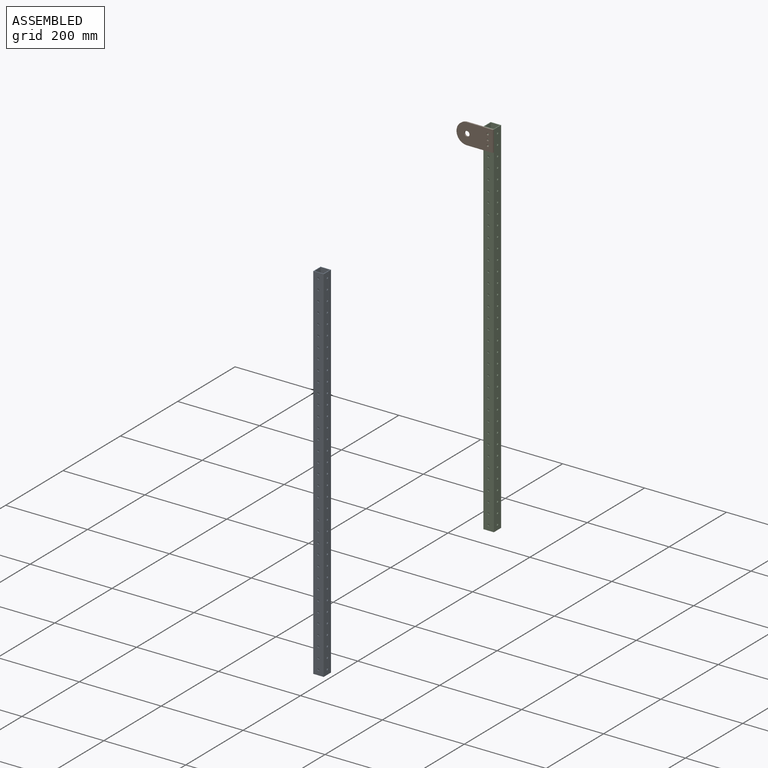
[diagram: assembled view]
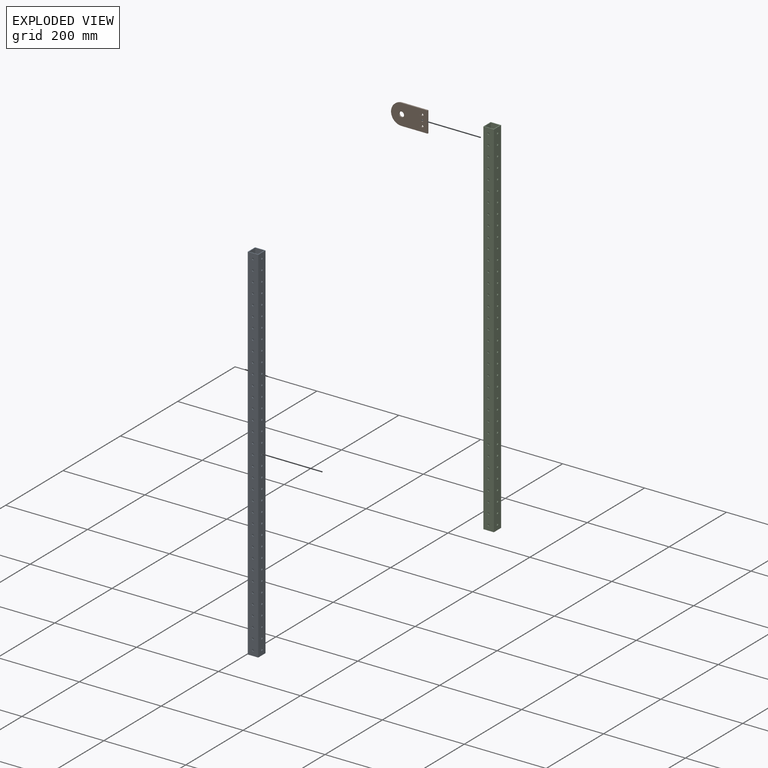
[diagram: exploded view]
GUIDED TOUR — MATED ASSEMBLY (Onshape document ac5246587169fc90806b41d7, AutoMate assembly ac5246587169fc90806b41d7_b72da44484d10dc54b9407ca_9897477dd4e05959f77915a9_default)

This assembly has 3 components, labeled P0..P2 below (a component is one placed occurrence of a part; the same part can appear more than once), held together by 3 mates. A mate is a constraint between two components; its type names the relative motion it leaves free:
  CYLINDRICAL — leaves both rotation about and translation along the listed axis free,
  PLANAR — leaves sliding in the plane through the listed point (normal = the listed direction) and rotation about that normal free.
Axis/direction vectors are unit vectors and 'through' points are millimeter coordinates, both in the assembly's world frame.

MATES
  1. PLANAR "Planar 1": P2 <-> P1, direction (0.000, -1.000, 0.000) through (-244.31, 148.28, 1399.09) mm
  2. CYLINDRICAL "Cylindrical 2": P1 <-> P2, axis (0.000, -1.000, 0.000) through (-244.31, 145.11, 1424.49) mm
  3. CYLINDRICAL "Cylindrical 1": P1 <-> P2, axis (0.000, -1.000, 0.000) through (-244.31, 145.11, 1449.89) mm

ASSEMBLY ORDER
  1. P2 — the base component [order verified]
  2. P1 [order verified]
  3. P0 [order verified]
Order-tag legend:
  [order verified] — this step's position reverses a verified removal order: the component was checked to insert without passing through the ones already placed.

Of the 3 components, 3 carry the full construction recipe — the FeatureScript program that regenerates the part's solid from scratch; the rest are supplied as boundary geometry only.
Each toured component is shown spotlighted twice — in the assembled view, then in the exploded view, where a leader line traces a displaced component back to its assembled socket (saturated green if recipe-attached, orange if geometry-only; every other component desaturated gray) — followed by its recipe or geometry summary and the mates that hold it.
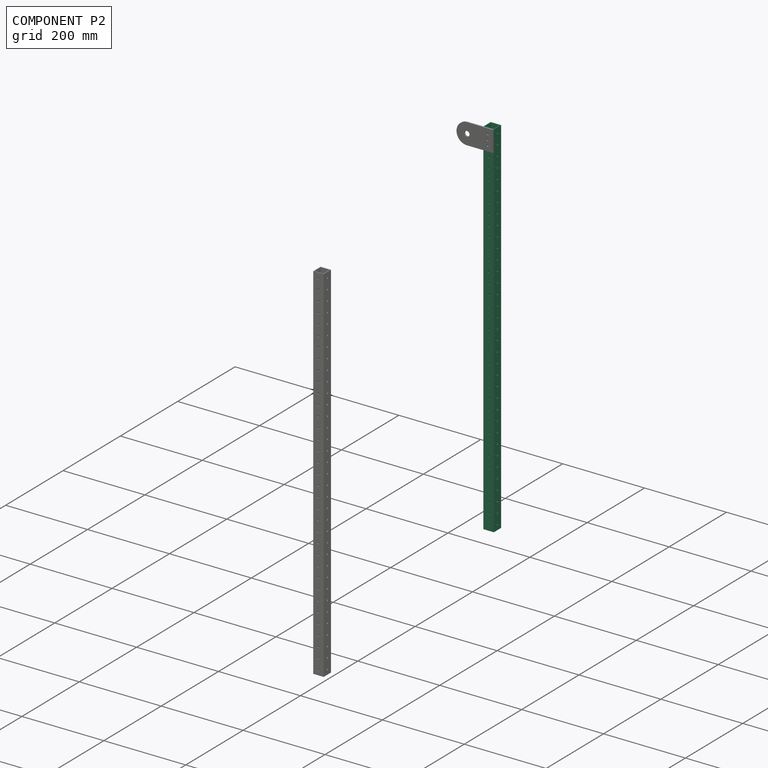
[diagram: component P2 — assembled]
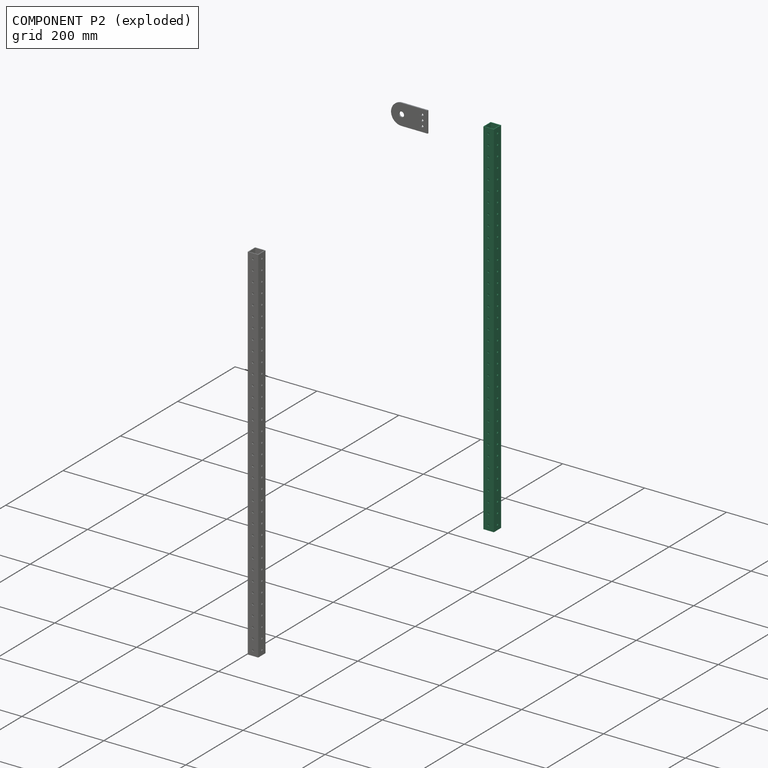
[diagram: component P2 — exploded]
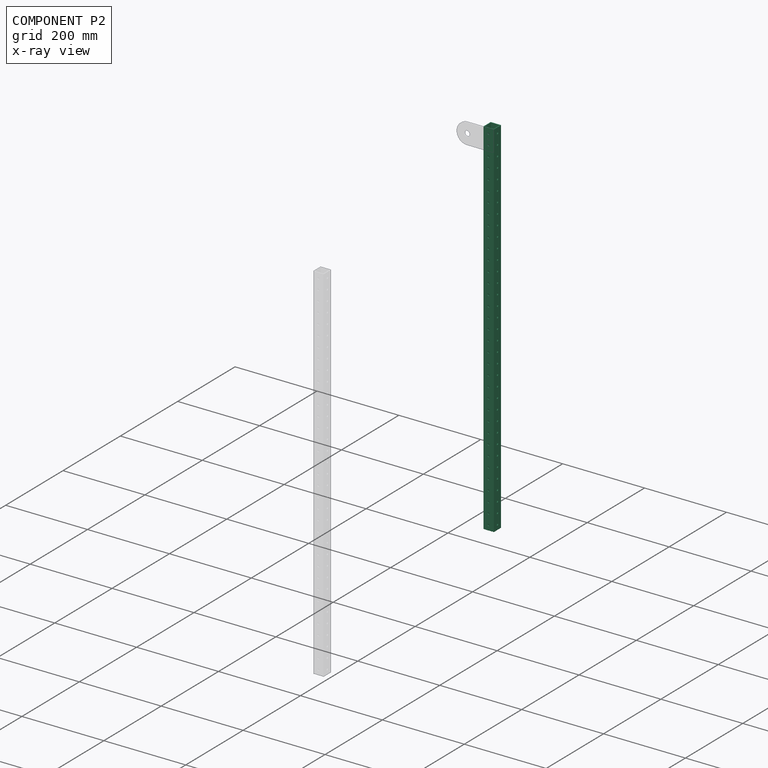
[diagram: component P2 — x-ray view]
COMPONENT P2 — same part as P0 (CADFS 00293491); its construction recipe is shown at P0.
Held by: PLANAR mate "Planar 1" to P1; CYLINDRICAL mate "Cylindrical 2" to P1; CYLINDRICAL mate "Cylindrical 1" to P1.
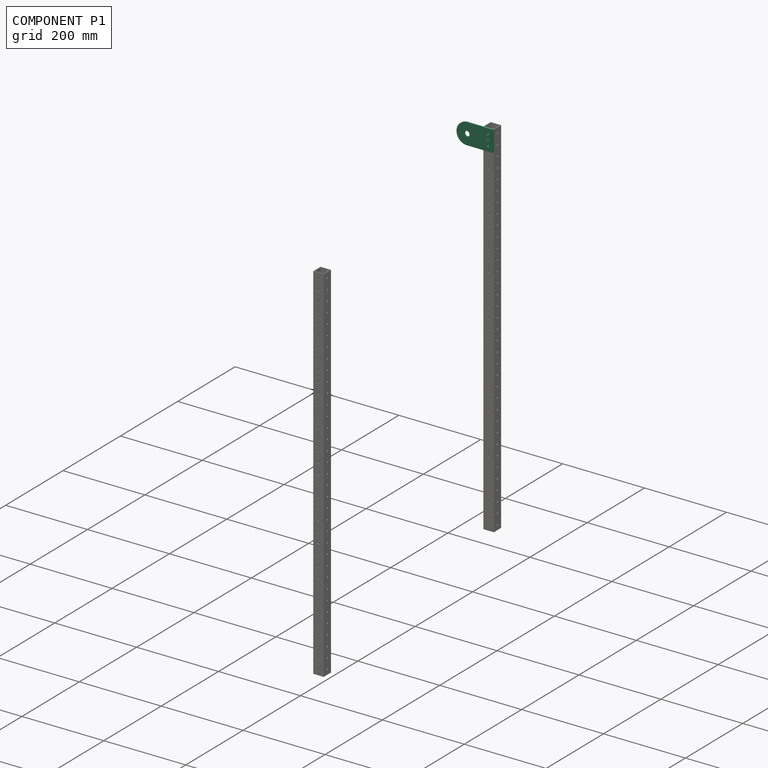
[diagram: component P1 — assembled]
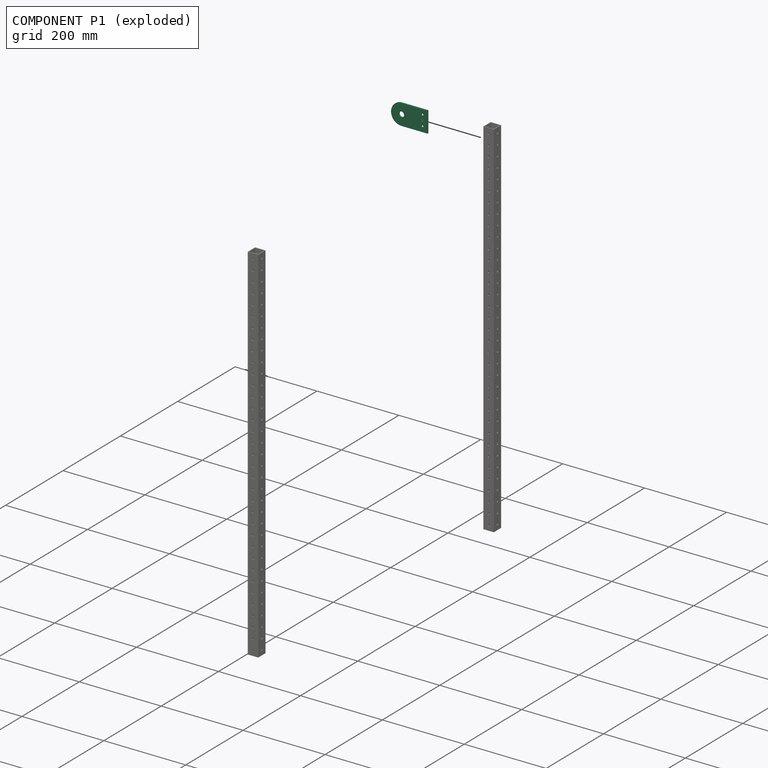
[diagram: component P1 — exploded]
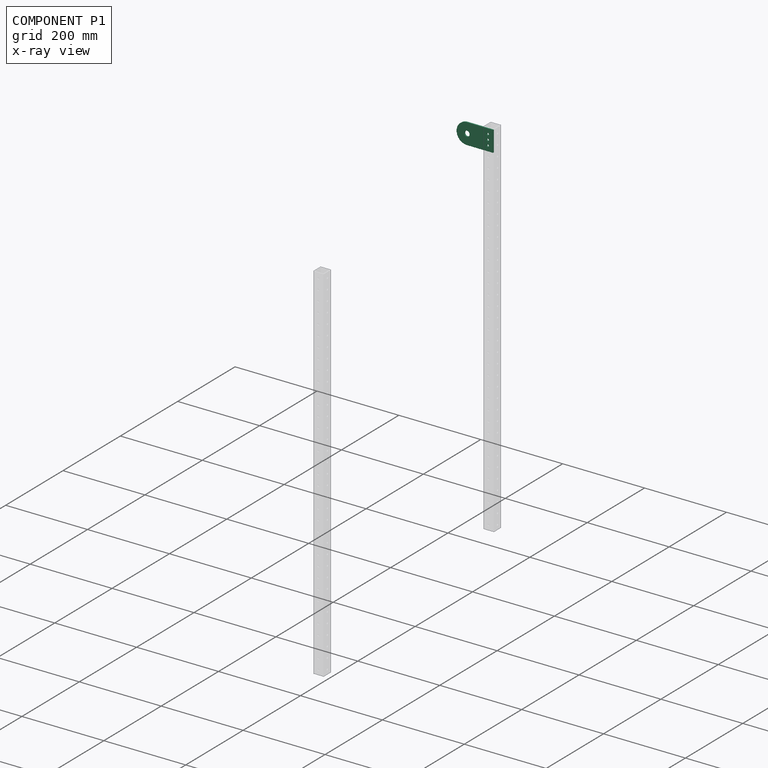
[diagram: component P1 — x-ray view]
COMPONENT P1 — recipe-attached (CADFS 00293493, mesh-verified: the recipe's output STEP matches this component's geometry to below the mesh-comparison resolution (tessellation chordal tolerance ~0.154 mm)).
Held by: PLANAR mate "Planar 1" to P2; CYLINDRICAL mate "Cylindrical 2" to P2; CYLINDRICAL mate "Cylindrical 1" to P2.
Construction recipe (FeatureScript — the CAD program that rebuilds this solid; sketch coordinates are in the units given by the * unit suffixes, e.g. mm):

FeatureScript 1511;
import(path : "onshape/std/geometry.fs", version : "1511.0");
import(path : "onshape/std/common.fs", version : "1511.0");
const mm = millimeter;
const VERTEX = EntityType.VERTEX;
const EDGE = EntityType.EDGE;
const FACE = EntityType.FACE;
const BODY = EntityType.BODY;
function v(x, y){return vector(x, y);}
function OD(order){return orderDisambiguation(order);}
function OSD(set){return originalSetDisambiguation(set);}
function TD(topology){return topologyDisambiguation(topology);}
function TDD(query){return trueDependencyDisambiguation(query);}
function sQuery(a, b, c) {return sketchEntityQuery(a, b, c);}

annotation { "Feature Type Name" : "Feature", "Feature Type Description" : "" }
export const myFeature = defineFeature(function(context is Context, id is Id, definition is map)
    precondition{}
    {
        {
            var Q0;
            Q0=qCreatedBy(makeId("Front.planeOp"),FACE);
            var sketch = newSketch(context, id + "F0", { "sketchPlane" : qUnion([Q0])});
            skCircle(sketch, "E0", {"center": v(0, 0) * mm, "radius": 6.35 * mm});
            skArc(sketch, "E1", {"start": v(25.4, 0) * mm, "mid": v(0, 25.4) * mm, "end": v(-25.4, 0) * mm});
            skLineSegment(sketch, "E2", {"start": v(-25.4, 0) * mm, "end": v(-25.4, -63.5) * mm});
            skLineSegment(sketch, "E3", {"start": v(-25.4, -63.5) * mm, "end": v(25.4, -63.5) * mm});
            skLineSegment(sketch, "E4", {"start": v(25.4, -63.5) * mm, "end": v(25.4, 0) * mm});
            skCircle(sketch, "E5", {"center": v(-12.7, -50.8) * mm, "radius": 2.55 * mm});
            skCircle(sketch, "E6.1.0.0", {"center": v(0, -50.8) * mm, "radius": 2.55 * mm});
            skCircle(sketch, "E6.2.0.0", {"center": v(12.7, -50.8) * mm, "radius": 2.55 * mm});
            skLineSegment(sketch, "E6.direction1", {"start": v(-12.7, -50.8) * mm, "end": v(0, -50.8) * mm, "construction": true});
            skSolve(sketch);
        }
        {
            var Q0;
            Q0=makeQuery(id+"F0.imprint","IMPRINT",FACE,{"disambiguationData":[TD([[makeQuery(id+"F0.imprint","IMPRINT",EDGE,{"derivedFrom":sQuery(id+"F0.wireOp",EDGE,"E0")}),-1.0]])]});
            extrude(context, id + "F1", {"entities" : qUnion([Q0]), "depth" : 3.17 * mm});
        }
    });
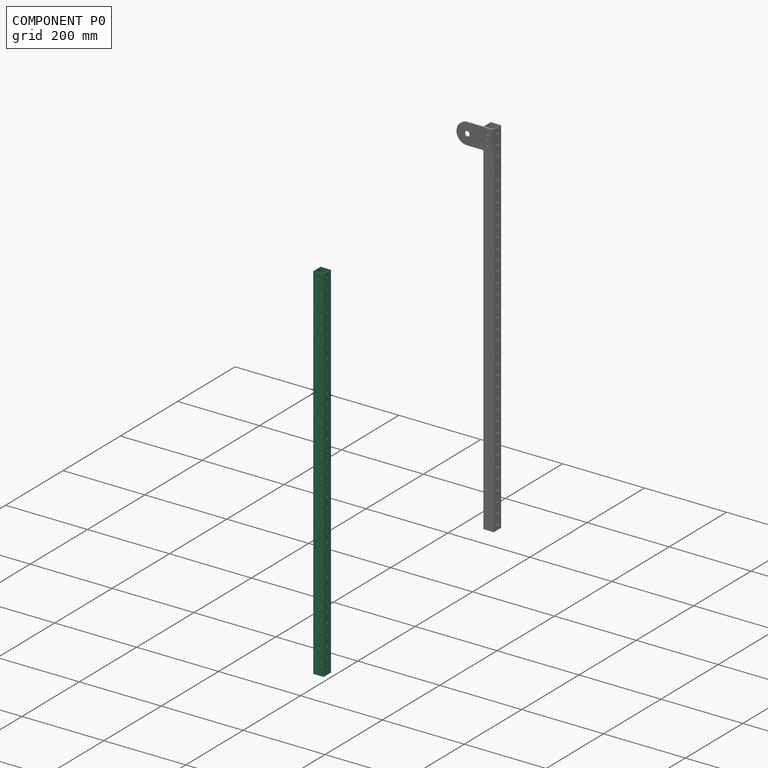
[diagram: component P0 — assembled]
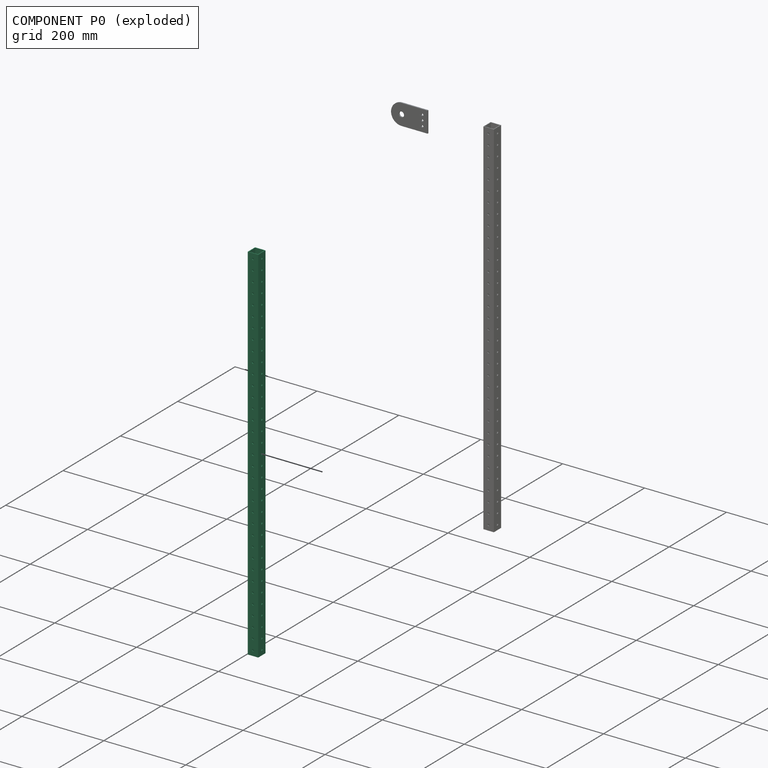
[diagram: component P0 — exploded]
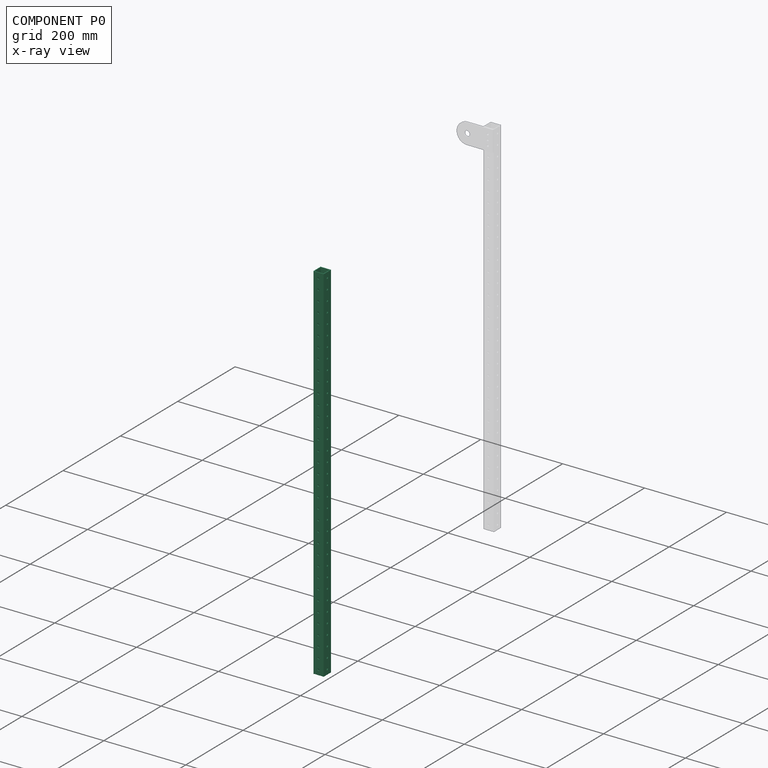
[diagram: component P0 — x-ray view]
COMPONENT P0 — recipe-attached (CADFS 00293491, mesh-verified: the recipe's output STEP matches this component's geometry to below the mesh-comparison resolution (tessellation chordal tolerance ~1.33 mm)).
Held by: no mates (free).
Construction recipe (FeatureScript — the CAD program that rebuilds this solid; sketch coordinates are in the units given by the * unit suffixes, e.g. mm):

FeatureScript 1511;
import(path : "onshape/std/geometry.fs", version : "1511.0");
import(path : "onshape/std/common.fs", version : "1511.0");
const mm = millimeter;
const VERTEX = EntityType.VERTEX;
const EDGE = EntityType.EDGE;
const FACE = EntityType.FACE;
const BODY = EntityType.BODY;
function v(x, y){return vector(x, y);}
function OD(order){return orderDisambiguation(order);}
function OSD(set){return originalSetDisambiguation(set);}
function TD(topology){return topologyDisambiguation(topology);}
function TDD(query){return trueDependencyDisambiguation(query);}
function sQuery(a, b, c) {return sketchEntityQuery(a, b, c);}

annotation { "Feature Type Name" : "Feature", "Feature Type Description" : "" }
export const myFeature = defineFeature(function(context is Context, id is Id, definition is map)
    precondition{}
    {
        {
            var Q0;
            Q0=qCreatedBy(makeId("Top.planeOp"),FACE);
            var sketch = newSketch(context, id + "F0", { "sketchPlane" : qUnion([Q0])});
            skLineSegment(sketch, "E0.bottom", {"start": v(12.7, -12.7) * mm, "end": v(-12.7, -12.7) * mm});
            skLineSegment(sketch, "E0.top", {"start": v(12.7, 12.7) * mm, "end": v(-12.7, 12.7) * mm});
            skLineSegment(sketch, "E0.left", {"start": v(12.7, -12.7) * mm, "end": v(12.7, 12.7) * mm});
            skLineSegment(sketch, "E0.right", {"start": v(-12.7, -12.7) * mm, "end": v(-12.7, 12.7) * mm});
            skPoint(sketch, "E0.middle", {"position": v(0, 0) * mm});
            skSolve(sketch);
        }
        {
            var Q0;
            Q0=makeQuery(id+"F0.imprint","IMPRINT",FACE,{"disambiguationData":[TD([[makeQuery(id+"F0.imprint","IMPRINT",EDGE,{"derivedFrom":sQuery(id+"F0.wireOp",EDGE,"E0.bottom")}),-1.0]])]});
            extrude(context, id + "F1", {"entities" : qUnion([Q0]), "depth" : 889 * mm});
        }
        {
            var Q0;
            Q0=makeQuery(id+"F1.opExtrude","CAP_FACE",FACE,{"disambiguationData":[OSD([sQuery(id+"F0.wireOp",EDGE,"E0.bottom"),sQuery(id+"F0.wireOp",EDGE,"E0.top"),sQuery(id+"F0.wireOp",EDGE,"E0.left"),sQuery(id+"F0.wireOp",EDGE,"E0.right")])],"isStart":false});
            var sketch = newSketch(context, id + "F2", { "sketchPlane" : qUnion([Q0])});
            skLineSegment(sketch, "E1.bottom", {"start": v(11.11, -11.11) * mm, "end": v(-11.11, -11.11) * mm});
            skLineSegment(sketch, "E1.top", {"start": v(11.11, 11.11) * mm, "end": v(-11.11, 11.11) * mm});
            skLineSegment(sketch, "E1.left", {"start": v(11.11, -11.11) * mm, "end": v(11.11, 11.11) * mm});
            skLineSegment(sketch, "E1.right", {"start": v(-11.11, -11.11) * mm, "end": v(-11.11, 11.11) * mm});
            skPoint(sketch, "E1.middle", {"position": v(0, 0) * mm});
            skSolve(sketch);
        }
        {
            var Q0;
            Q0=makeQuery(id+"F2.imprint","IMPRINT",FACE,{"disambiguationData":[TD([[makeQuery(id+"F2.imprint","IMPRINT",EDGE,{"derivedFrom":sQuery(id+"F2.wireOp",EDGE,"E1.bottom")}),-1.0]])]});
            extrude(context, id + "F3", {"entities" : qUnion([Q0]), "operationType" : NewBodyOperationType.REMOVE, "oppositeDirection" : true, "depth" : 889 * mm});
        }
        {
            var Q0;
            Q0=makeQuery(id+"F1.opExtrude","SWEPT_FACE",FACE,{"disambiguationData":[OSD([sQuery(id+"F0.wireOp",EDGE,"E0.top")])]});
            var sketch = newSketch(context, id + "F4", { "sketchPlane" : qUnion([Q0])});
            skCircle(sketch, "E2", {"center": v(0, 876.3) * mm, "radius": 2.55 * mm});
            skCircle(sketch, "E3.1.0.0", {"center": v(0, 850.9) * mm, "radius": 2.55 * mm});
            skCircle(sketch, "E3.2.0.0", {"center": v(0, 825.5) * mm, "radius": 2.55 * mm});
            skCircle(sketch, "E3.3.0.0", {"center": v(0, 800.1) * mm, "radius": 2.55 * mm});
            skCircle(sketch, "E3.4.0.0", {"center": v(0, 774.7) * mm, "radius": 2.55 * mm});
            skCircle(sketch, "E3.5.0.0", {"center": v(0, 749.3) * mm, "radius": 2.55 * mm});
            skCircle(sketch, "E3.6.0.0", {"center": v(0, 723.9) * mm, "radius": 2.55 * mm});
            skCircle(sketch, "E3.7.0.0", {"center": v(0, 698.5) * mm, "radius": 2.55 * mm});
            skCircle(sketch, "E3.8.0.0", {"center": v(0, 673.1) * mm, "radius": 2.55 * mm});
            skCircle(sketch, "E3.9.0.0", {"center": v(0, 647.7) * mm, "radius": 2.55 * mm});
            skCircle(sketch, "E3.10.0.0", {"center": v(0, 622.3) * mm, "radius": 2.55 * mm});
            skCircle(sketch, "E3.11.0.0", {"center": v(0, 596.9) * mm, "radius": 2.55 * mm});
            skCircle(sketch, "E3.12.0.0", {"center": v(0, 571.5) * mm, "radius": 2.55 * mm});
            skCircle(sketch, "E3.13.0.0", {"center": v(0, 546.1) * mm, "radius": 2.55 * mm});
            skCircle(sketch, "E3.14.0.0", {"center": v(0, 520.7) * mm, "radius": 2.55 * mm});
            skCircle(sketch, "E3.15.0.0", {"center": v(0, 495.3) * mm, "radius": 2.55 * mm});
            skCircle(sketch, "E3.16.0.0", {"center": v(0, 469.9) * mm, "radius": 2.55 * mm});
            skCircle(sketch, "E3.17.0.0", {"center": v(0, 444.5) * mm, "radius": 2.55 * mm});
            skCircle(sketch, "E3.18.0.0", {"center": v(0, 419.1) * mm, "radius": 2.55 * mm});
            skCircle(sketch, "E3.19.0.0", {"center": v(0, 393.7) * mm, "radius": 2.55 * mm});
            skCircle(sketch, "E3.20.0.0", {"center": v(0, 368.3) * mm, "radius": 2.55 * mm});
            skCircle(sketch, "E3.21.0.0", {"center": v(0, 342.9) * mm, "radius": 2.55 * mm});
            skCircle(sketch, "E3.22.0.0", {"center": v(0, 317.5) * mm, "radius": 2.55 * mm});
            skCircle(sketch, "E3.23.0.0", {"center": v(0, 292.1) * mm, "radius": 2.55 * mm});
            skCircle(sketch, "E3.24.0.0", {"center": v(0, 266.7) * mm, "radius": 2.55 * mm});
            skCircle(sketch, "E3.25.0.0", {"center": v(0, 241.3) * mm, "radius": 2.55 * mm});
            skCircle(sketch, "E3.26.0.0", {"center": v(0, 215.9) * mm, "radius": 2.55 * mm});
            skCircle(sketch, "E3.27.0.0", {"center": v(0, 190.5) * mm, "radius": 2.55 * mm});
            skCircle(sketch, "E3.28.0.0", {"center": v(0, 165.1) * mm, "radius": 2.55 * mm});
            skCircle(sketch, "E3.29.0.0", {"center": v(0, 139.7) * mm, "radius": 2.55 * mm});
            skCircle(sketch, "E3.30.0.0", {"center": v(0, 114.3) * mm, "radius": 2.55 * mm});
            skCircle(sketch, "E3.31.0.0", {"center": v(0, 88.9) * mm, "radius": 2.55 * mm});
            skCircle(sketch, "E3.32.0.0", {"center": v(0, 63.5) * mm, "radius": 2.55 * mm});
            skCircle(sketch, "E3.33.0.0", {"center": v(0, 38.1) * mm, "radius": 2.55 * mm});
            skCircle(sketch, "E3.34.0.0", {"center": v(0, 12.7) * mm, "radius": 2.55 * mm});
            skLineSegment(sketch, "E3.direction1", {"start": v(0, 876.3) * mm, "end": v(0, 850.9) * mm, "construction": true});
            skSolve(sketch);
        }
        {
            var Q0;
            Q0=sQuery(id+"F4.wireOp",VERTEX,"E2.center");
            var Q1;
            Q1=sQuery(id+"F4.wireOp",VERTEX,"E3.1.0.0.center");
            var Q2;
            Q2=sQuery(id+"F4.wireOp",VERTEX,"E3.2.0.0.center");
            var Q3;
            Q3=sQuery(id+"F4.wireOp",VERTEX,"E3.3.0.0.center");
            var Q4;
            Q4=sQuery(id+"F4.wireOp",VERTEX,"E3.4.0.0.center");
            var Q5;
            Q5=sQuery(id+"F4.wireOp",VERTEX,"E3.5.0.0.center");
            var Q6;
            Q6=sQuery(id+"F4.wireOp",VERTEX,"E3.6.0.0.center");
            var Q7;
            Q7=sQuery(id+"F4.wireOp",VERTEX,"E3.7.0.0.center");
            var Q8;
            Q8=sQuery(id+"F4.wireOp",VERTEX,"E3.8.0.0.center");
            var Q9;
            Q9=sQuery(id+"F4.wireOp",VERTEX,"E3.9.0.0.center");
            var Q10;
            Q10=sQuery(id+"F4.wireOp",VERTEX,"E3.10.0.0.center");
            var Q11;
            Q11=sQuery(id+"F4.wireOp",VERTEX,"E3.11.0.0.center");
            var Q12;
            Q12=sQuery(id+"F4.wireOp",VERTEX,"E3.12.0.0.center");
            var Q13;
            Q13=sQuery(id+"F4.wireOp",VERTEX,"E3.13.0.0.center");
            var Q14;
            Q14=sQuery(id+"F4.wireOp",VERTEX,"E3.14.0.0.center");
            var Q15;
            Q15=sQuery(id+"F4.wireOp",VERTEX,"E3.16.0.0.center");
            var Q16;
            Q16=sQuery(id+"F4.wireOp",VERTEX,"E3.17.0.0.center");
            var Q17;
            Q17=sQuery(id+"F4.wireOp",VERTEX,"E3.18.0.0.center");
            var Q18;
            Q18=sQuery(id+"F4.wireOp",VERTEX,"E3.15.0.0.center");
            var Q19;
            Q19=sQuery(id+"F4.wireOp",VERTEX,"E3.19.0.0.center");
            var Q20;
            Q20=sQuery(id+"F4.wireOp",VERTEX,"E3.20.0.0.center");
            var Q21;
            Q21=sQuery(id+"F4.wireOp",VERTEX,"E3.21.0.0.center");
            var Q22;
            Q22=sQuery(id+"F4.wireOp",VERTEX,"E3.22.0.0.center");
            var Q23;
            Q23=sQuery(id+"F4.wireOp",VERTEX,"E3.23.0.0.center");
            var Q24;
            Q24=sQuery(id+"F4.wireOp",VERTEX,"E3.24.0.0.center");
            var Q25;
            Q25=sQuery(id+"F4.wireOp",VERTEX,"E3.25.0.0.center");
            var Q26;
            Q26=sQuery(id+"F4.wireOp",VERTEX,"E3.26.0.0.center");
            var Q27;
            Q27=sQuery(id+"F4.wireOp",VERTEX,"E3.27.0.0.center");
            var Q28;
            Q28=sQuery(id+"F4.wireOp",VERTEX,"E3.28.0.0.center");
            var Q29;
            Q29=sQuery(id+"F4.wireOp",VERTEX,"E3.29.0.0.center");
            var Q30;
            Q30=sQuery(id+"F4.wireOp",VERTEX,"E3.30.0.0.center");
            var Q31;
            Q31=sQuery(id+"F4.wireOp",VERTEX,"E3.31.0.0.center");
            var Q32;
            Q32=sQuery(id+"F4.wireOp",VERTEX,"E3.32.0.0.center");
            var Q33;
            Q33=sQuery(id+"F4.wireOp",VERTEX,"E3.33.0.0.center");
            var Q34;
            Q34=sQuery(id+"F4.wireOp",VERTEX,"E3.34.0.0.center");
            var Q35;
            Q35=makeQuery(id+"F1.opExtrude","SWEPT_BODY",BODY,{"disambiguationData":[OSD([sQuery(id+"F0.wireOp",EDGE,"E0.bottom"),sQuery(id+"F0.wireOp",EDGE,"E0.top"),sQuery(id+"F0.wireOp",EDGE,"E0.left"),sQuery(id+"F0.wireOp",EDGE,"E0.right")])]});
            hole(context, id + "F5", {"style" : HoleStyle.SIMPLE, "endStyle" : HoleEndStyle.THROUGH, "holeDiameter" : 5.1 * mm, "tappedDepth" : 12.7 * mm, "tapClearance" : 3, "locations" : qUnion([Q0, Q1, Q2, Q3, Q4, Q5, Q6, Q7, Q8, Q9, Q10, Q11, Q12, Q13, Q14, Q15, Q16, Q17, Q18, Q19, Q20, Q21, Q22, Q23, Q24, Q25, Q26, Q27, Q28, Q29, Q30, Q31, Q32, Q33, Q34]), "scope" : qUnion([Q35])});
        }
        {
            var Q0;
            Q0=makeQuery(id+"F1.opExtrude","SWEPT_FACE",FACE,{"disambiguationData":[OSD([sQuery(id+"F0.wireOp",EDGE,"E0.left")])]});
            var sketch = newSketch(context, id + "F6", { "sketchPlane" : qUnion([Q0])});
            skCircle(sketch, "E4", {"center": v(0, 876.3) * mm, "radius": 2.55 * mm});
            skCircle(sketch, "E5.0.1.0", {"center": v(0, 850.9) * mm, "radius": 2.55 * mm});
            skCircle(sketch, "E5.0.2.0", {"center": v(0, 825.5) * mm, "radius": 2.55 * mm});
            skCircle(sketch, "E5.0.3.0", {"center": v(0, 800.1) * mm, "radius": 2.55 * mm});
            skCircle(sketch, "E5.0.4.0", {"center": v(0, 774.7) * mm, "radius": 2.55 * mm});
            skCircle(sketch, "E5.0.5.0", {"center": v(0, 749.3) * mm, "radius": 2.55 * mm});
            skCircle(sketch, "E5.0.6.0", {"center": v(0, 723.9) * mm, "radius": 2.55 * mm});
            skCircle(sketch, "E5.0.7.0", {"center": v(0, 698.5) * mm, "radius": 2.55 * mm});
            skCircle(sketch, "E5.0.8.0", {"center": v(0, 673.1) * mm, "radius": 2.55 * mm});
            skCircle(sketch, "E5.0.9.0", {"center": v(0, 647.7) * mm, "radius": 2.55 * mm});
            skCircle(sketch, "E5.0.10.0", {"center": v(0, 622.3) * mm, "radius": 2.55 * mm});
            skCircle(sketch, "E5.0.11.0", {"center": v(0, 596.9) * mm, "radius": 2.55 * mm});
            skCircle(sketch, "E5.0.12.0", {"center": v(0, 571.5) * mm, "radius": 2.55 * mm});
            skCircle(sketch, "E5.0.13.0", {"center": v(0, 546.1) * mm, "radius": 2.55 * mm});
            skCircle(sketch, "E5.0.14.0", {"center": v(0, 520.7) * mm, "radius": 2.55 * mm});
            skCircle(sketch, "E5.0.15.0", {"center": v(0, 495.3) * mm, "radius": 2.55 * mm});
            skCircle(sketch, "E5.0.16.0", {"center": v(0, 469.9) * mm, "radius": 2.55 * mm});
            skCircle(sketch, "E5.0.17.0", {"center": v(0, 444.5) * mm, "radius": 2.55 * mm});
            skCircle(sketch, "E5.0.18.0", {"center": v(0, 419.1) * mm, "radius": 2.55 * mm});
            skCircle(sketch, "E5.0.19.0", {"center": v(0, 393.7) * mm, "radius": 2.55 * mm});
            skCircle(sketch, "E5.0.20.0", {"center": v(0, 368.3) * mm, "radius": 2.55 * mm});
            skCircle(sketch, "E5.0.21.0", {"center": v(0, 342.9) * mm, "radius": 2.55 * mm});
            skCircle(sketch, "E5.0.22.0", {"center": v(0, 317.5) * mm, "radius": 2.55 * mm});
            skCircle(sketch, "E5.0.23.0", {"center": v(0, 292.1) * mm, "radius": 2.55 * mm});
            skCircle(sketch, "E5.0.24.0", {"center": v(0, 266.7) * mm, "radius": 2.55 * mm});
            skCircle(sketch, "E5.0.25.0", {"center": v(0, 241.3) * mm, "radius": 2.55 * mm});
            skCircle(sketch, "E5.0.26.0", {"center": v(0, 215.9) * mm, "radius": 2.55 * mm});
            skCircle(sketch, "E5.0.27.0", {"center": v(0, 190.5) * mm, "radius": 2.55 * mm});
            skCircle(sketch, "E5.0.28.0", {"center": v(0, 165.1) * mm, "radius": 2.55 * mm});
            skCircle(sketch, "E5.0.29.0", {"center": v(0, 139.7) * mm, "radius": 2.55 * mm});
            skCircle(sketch, "E5.0.30.0", {"center": v(0, 114.3) * mm, "radius": 2.55 * mm});
            skCircle(sketch, "E5.0.31.0", {"center": v(0, 88.9) * mm, "radius": 2.55 * mm});
            skCircle(sketch, "E5.0.32.0", {"center": v(0, 63.5) * mm, "radius": 2.55 * mm});
            skCircle(sketch, "E5.0.33.0", {"center": v(0, 38.1) * mm, "radius": 2.55 * mm});
            skCircle(sketch, "E5.0.34.0", {"center": v(0, 12.7) * mm, "radius": 2.55 * mm});
            skLineSegment(sketch, "E5.direction1", {"start": v(0, 876.3) * mm, "end": v(25.4, 876.3) * mm, "construction": true});
            skLineSegment(sketch, "E5.direction2", {"start": v(0, 876.3) * mm, "end": v(0, 850.9) * mm, "construction": true});
            skSolve(sketch);
        }
        {
            var Q0;
            Q0=sQuery(id+"F6.wireOp",VERTEX,"E5.0.33.0.center");
            var Q1;
            Q1=sQuery(id+"F6.wireOp",VERTEX,"E5.0.17.0.center");
            var Q2;
            Q2=sQuery(id+"F6.wireOp",VERTEX,"E5.0.13.0.center");
            var Q3;
            Q3=sQuery(id+"F6.wireOp",VERTEX,"E5.0.29.0.center");
            var Q4;
            Q4=sQuery(id+"F6.wireOp",VERTEX,"E5.0.26.0.center");
            var Q5;
            Q5=sQuery(id+"F6.wireOp",VERTEX,"E5.0.15.0.center");
            var Q6;
            Q6=sQuery(id+"F6.wireOp",VERTEX,"E5.0.31.0.center");
            var Q7;
            Q7=sQuery(id+"F6.wireOp",VERTEX,"E5.0.12.0.center");
            var Q8;
            Q8=sQuery(id+"F6.wireOp",VERTEX,"E5.0.20.0.center");
            var Q9;
            Q9=sQuery(id+"F6.wireOp",VERTEX,"E5.0.10.0.center");
            var Q10;
            Q10=sQuery(id+"F6.wireOp",VERTEX,"E5.0.4.0.center");
            var Q11;
            Q11=sQuery(id+"F6.wireOp",VERTEX,"E5.0.6.0.center");
            var Q12;
            Q12=sQuery(id+"F6.wireOp",VERTEX,"E5.0.24.0.center");
            var Q13;
            Q13=sQuery(id+"F6.wireOp",VERTEX,"E5.direction1.start");
            var Q14;
            Q14=sQuery(id+"F6.wireOp",VERTEX,"E5.0.28.0.center");
            var Q15;
            Q15=sQuery(id+"F6.wireOp",VERTEX,"E5.0.22.0.center");
            var Q16;
            Q16=sQuery(id+"F6.wireOp",VERTEX,"E5.0.1.0.center");
            var Q17;
            Q17=sQuery(id+"F6.wireOp",VERTEX,"E5.0.19.0.center");
            var Q18;
            Q18=sQuery(id+"F6.wireOp",VERTEX,"E5.0.2.0.center");
            var Q19;
            Q19=sQuery(id+"F6.wireOp",VERTEX,"E5.direction1.end");
            var Q20;
            Q20=sQuery(id+"F6.wireOp",VERTEX,"E5.0.8.0.center");
            var Q21;
            Q21=sQuery(id+"F6.wireOp",VERTEX,"E5.0.34.0.center");
            var Q22;
            Q22=sQuery(id+"F6.wireOp",VERTEX,"E5.0.16.0.center");
            var Q23;
            Q23=sQuery(id+"F6.wireOp",VERTEX,"E5.0.32.0.center");
            var Q24;
            Q24=sQuery(id+"F6.wireOp",VERTEX,"E5.0.14.0.center");
            var Q25;
            Q25=sQuery(id+"F6.wireOp",VERTEX,"E5.0.30.0.center");
            var Q26;
            Q26=sQuery(id+"F6.wireOp",VERTEX,"E5.0.9.0.center");
            var Q27;
            Q27=sQuery(id+"F6.wireOp",VERTEX,"E5.0.3.0.center");
            var Q28;
            Q28=sQuery(id+"F6.wireOp",VERTEX,"E5.0.7.0.center");
            var Q29;
            Q29=sQuery(id+"F6.wireOp",VERTEX,"E5.0.11.0.center");
            var Q30;
            Q30=sQuery(id+"F6.wireOp",VERTEX,"E5.0.21.0.center");
            var Q31;
            Q31=sQuery(id+"F6.wireOp",VERTEX,"E5.0.27.0.center");
            var Q32;
            Q32=sQuery(id+"F6.wireOp",VERTEX,"E5.0.25.0.center");
            var Q33;
            Q33=sQuery(id+"F6.wireOp",VERTEX,"E5.0.23.0.center");
            var Q34;
            Q34=sQuery(id+"F6.wireOp",VERTEX,"E5.0.18.0.center");
            var Q35;
            Q35=sQuery(id+"F6.wireOp",VERTEX,"E5.0.5.0.center");
            var Q36;
            Q36=makeQuery(id+"F1.opExtrude","SWEPT_BODY",BODY,{"disambiguationData":[OSD([sQuery(id+"F0.wireOp",EDGE,"E0.bottom"),sQuery(id+"F0.wireOp",EDGE,"E0.top"),sQuery(id+"F0.wireOp",EDGE,"E0.left"),sQuery(id+"F0.wireOp",EDGE,"E0.right")])]});
            hole(context, id + "F7", {"style" : HoleStyle.SIMPLE, "endStyle" : HoleEndStyle.THROUGH, "holeDiameter" : 5.1 * mm, "tappedDepth" : 12.7 * mm, "tapClearance" : 3, "locations" : qUnion([Q0, Q1, Q2, Q3, Q4, Q5, Q6, Q7, Q8, Q9, Q10, Q11, Q12, Q13, Q14, Q15, Q16, Q17, Q18, Q19, Q20, Q21, Q22, Q23, Q24, Q25, Q26, Q27, Q28, Q29, Q30, Q31, Q32, Q33, Q34, Q35]), "scope" : qUnion([Q36])});
        }
    });
PROVENANCE & LICENSES
Assembly (occurrences, transforms, mates, per-part STEP geometry): AutoMate dataset, Zenodo record 7776208, CC0.
Construction recipes: CADFS (HuggingFace VladPyatov/CADFS, CC-BY-4.0, layered over the ABC dataset), FeatureScript reconstruction programs keyed by ABC model id.
Join: ABC meta listings map ABC model id -> Onshape documentId; within a shared document, parts are matched by geometric signature (bounding-box dims + volume at 0.1% relative tolerance, exact B-rep face/solid counts).
Verification: 3 of this assembly's 3 components carry a recipe attachment, and every attachment is mesh-verified: the CADFS STEP and the AutoMate member STEP were compared as meshes in their shared local frame (symmetric sampled-point-to-mesh distance); worst across the 3 attachments: below the mesh-comparison resolution (tessellation chordal tolerance ~1.33 mm) on a 890 mm part.
Renders: orthographic iso camera (az 35 / el 25); the floor grid conveys scale (grid pitch printed in each image; no ruler). In the exploded view each component is displaced by its stored offset vector: the offsets alone carry the explosion direction (mate normal/axis signs are not orientation cues and do not encode it), and separation distances are assigned per mate-chain, not proportionally to assembly-order depth.
